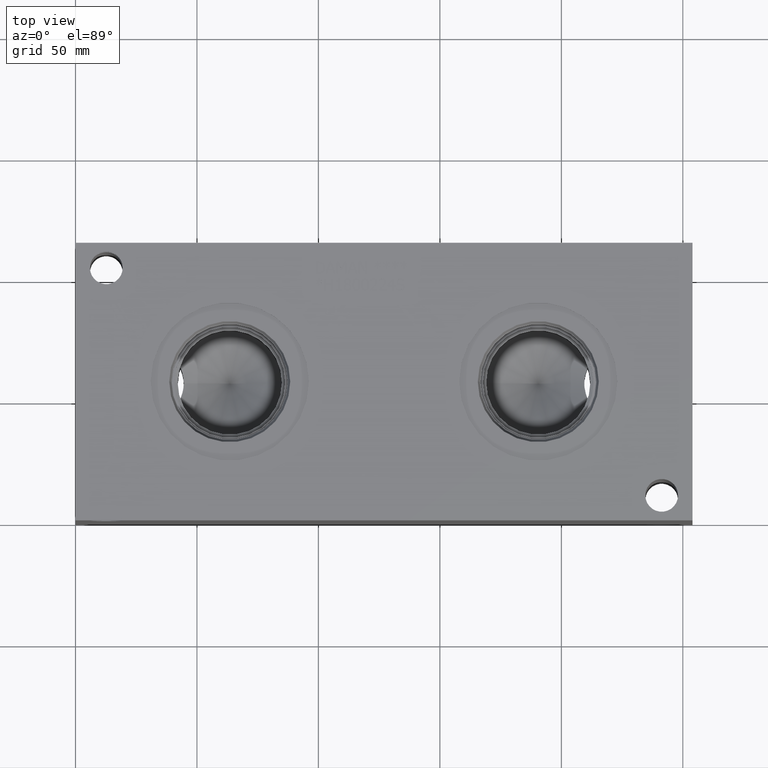
[diagram: clean part render]
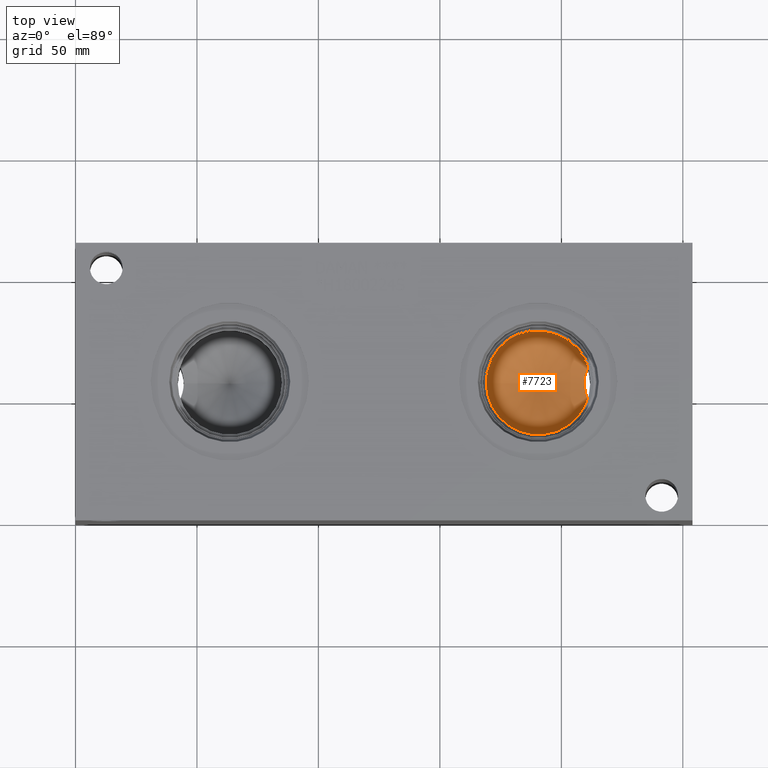
[diagram: same view with one face highlighted and labeled with its STEP entity id]
A machine part, top view. The second image highlights one B-rep face of the part: STEP entity #7723.
In plain terms, the highlighted conical surface has half-angle 60 deg.
Its self-contained STEP definition (entity closure, byte-faithful):
#30=CONICAL_SURFACE('',#8103,10.7188,1.0471975511966);
#138=CIRCLE('',#8101,21.4376);
#139=CIRCLE('',#8102,21.4376);
#454=B_SPLINE_CURVE_WITH_KNOTS('',3,(#13025,#13026,#13027,#13028,#13029,
#13030,#13031,#13032,#13033,#13034,#13035,#13036,#13037,#13038),
 .UNSPECIFIED.,.F.,.F.,(4,2,2,2,2,2,4),(2.20463967605849,2.21515036335288,
2.58434209057836,2.95353381780384,3.32272554502932,3.6919172722548,3.70242795954905),
 .UNSPECIFIED.);
#892=FACE_OUTER_BOUND('',#1319,.T.);
#1319=EDGE_LOOP('',(#6566,#6567,#6568,#6569,#6570));
#2096=LINE('',#13040,#2845);
#2845=VECTOR('',#9566,10.7188);
#3526=VERTEX_POINT('',#13004);
#3527=VERTEX_POINT('',#13006);
#3528=VERTEX_POINT('',#13008);
#3529=VERTEX_POINT('',#13039);
#4564=EDGE_CURVE('',#3527,#3526,#138,.T.);
#4566=EDGE_CURVE('',#3526,#3528,#139,.T.);
#4567=EDGE_CURVE('',#3527,#3528,#454,.T.);
#4568=EDGE_CURVE('',#3526,#3529,#2096,.T.);
#6566=ORIENTED_EDGE('',*,*,#4567,.F.);
#6567=ORIENTED_EDGE('',*,*,#4564,.T.);
#6568=ORIENTED_EDGE('',*,*,#4568,.T.);
#6569=ORIENTED_EDGE('',*,*,#4568,.F.);
#6570=ORIENTED_EDGE('',*,*,#4566,.T.);
#7723=ADVANCED_FACE('',(#892),#30,.F.);
#8101=AXIS2_PLACEMENT_3D('',#13007,#9560,#9561);
#8102=AXIS2_PLACEMENT_3D('',#13023,#9562,#9563);
#8103=AXIS2_PLACEMENT_3D('',#13024,#9564,#9565);
#9560=DIRECTION('center_axis',(0.,0.,1.));
#9561=DIRECTION('ref_axis',(1.,0.,0.));
#9562=DIRECTION('center_axis',(0.,0.,1.));
#9563=DIRECTION('ref_axis',(1.,0.,0.));
#9564=DIRECTION('center_axis',(0.,0.,1.));
#9565=DIRECTION('ref_axis',(1.,0.,0.));
#9566=DIRECTION('',(0.866025403784439,1.06057523872491E-16,-0.5));
#13004=CARTESIAN_POINT('',(169.0624,57.15,77.53323));
#13006=CARTESIAN_POINT('',(210.872115487403,63.8243991735531,77.53323));
#13007=CARTESIAN_POINT('Origin',(190.5,57.15,77.53323));
#13008=CARTESIAN_POINT('',(210.872115487403,50.4756008264485,77.53323));
#13023=CARTESIAN_POINT('Origin',(190.5,57.15,77.53323));
#13024=CARTESIAN_POINT('Origin',(190.5,57.15,71.3447279346102));
#13025=CARTESIAN_POINT('Ctrl Pts',(210.872115487403,63.8243991735531,77.53323));
#13026=CARTESIAN_POINT('Ctrl Pts',(210.860577691872,63.7954206537764,77.5216907640929));
#13027=CARTESIAN_POINT('Ctrl Pts',(210.849085113838,63.7664262345962,77.5101967478556));
#13028=CARTESIAN_POINT('Ctrl Pts',(210.435548757377,62.7184169943411,77.096608517211));
#13029=CARTESIAN_POINT('Ctrl Pts',(210.088473297214,61.6830936873136,76.7494850322858));
#13030=CARTESIAN_POINT('Ctrl Pts',(209.579196509804,59.5142328528356,76.2401343842848));
#13031=CARTESIAN_POINT('Ctrl Pts',(209.417114735056,58.3806390907516,76.0780271537963));
#13032=CARTESIAN_POINT('Ctrl Pts',(209.417114735056,55.9193609092484,76.0780271537963));
#13033=CARTESIAN_POINT('Ctrl Pts',(209.579196509804,54.7857671471644,76.2401343842848));
#13034=CARTESIAN_POINT('Ctrl Pts',(210.088473297214,52.6169063126864,76.7494850322858));
#13035=CARTESIAN_POINT('Ctrl Pts',(210.435548757377,51.581583005659,77.096608517211));
#13036=CARTESIAN_POINT('Ctrl Pts',(210.849085113838,50.5335737654042,77.5101967478554));
#13037=CARTESIAN_POINT('Ctrl Pts',(210.860577691872,50.5045793462244,77.5216907640926));
#13038=CARTESIAN_POINT('Ctrl Pts',(210.872115487402,50.475600826448,77.5332299999996));
#13039=CARTESIAN_POINT('',(190.5,57.15,65.1562258692205));
#13040=CARTESIAN_POINT('',(179.7812,57.15,71.3447279346102));